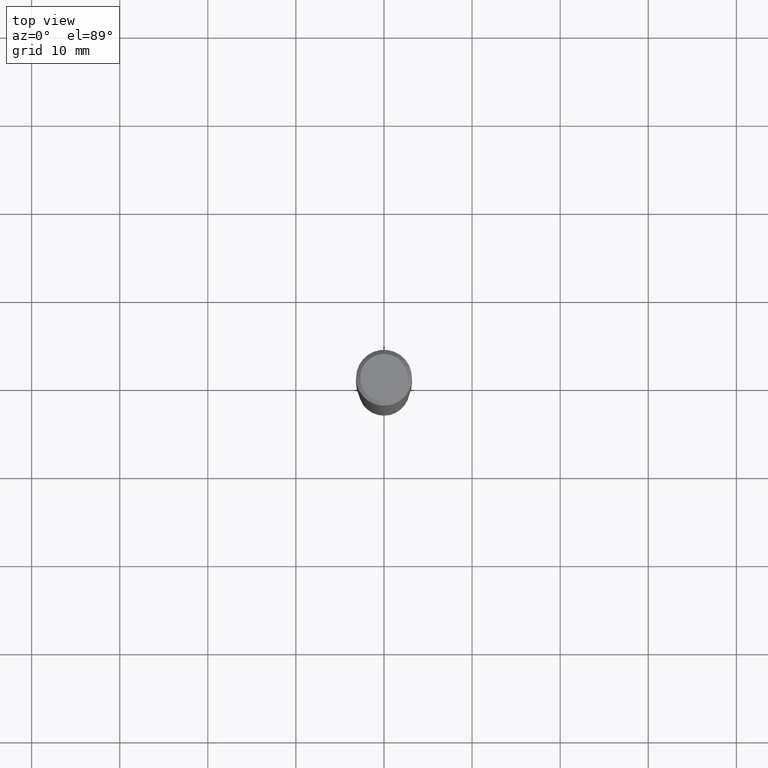
[diagram: clean part render]
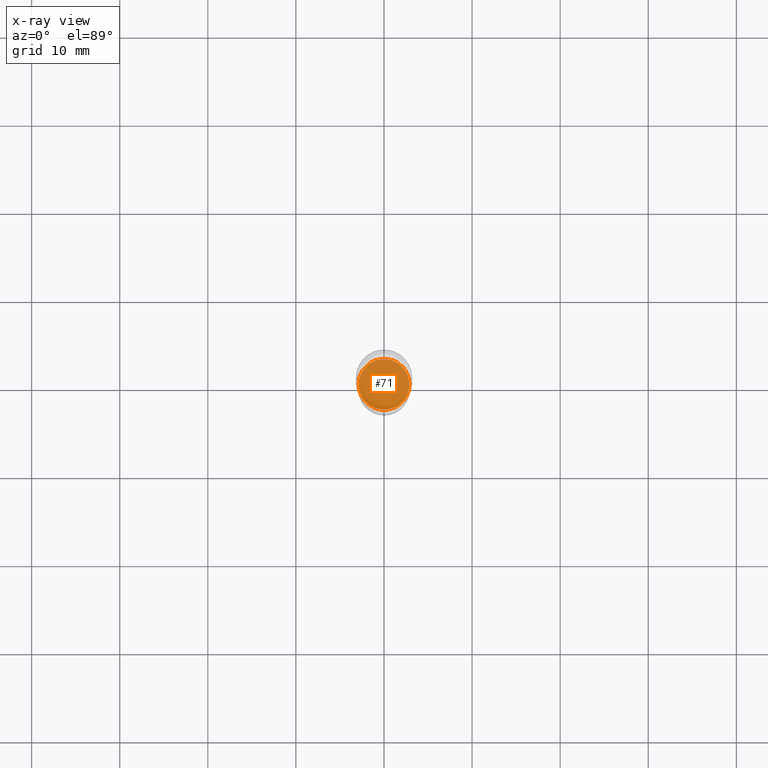
[diagram: x-ray — body ghosted, one internal face saturated and labeled with its STEP entity id]
A machine part, top view, then the same camera in x-ray: the body is ghosted and one INTERNAL B-rep face — a face not visible from any outside direction — is saturated and labeled: STEP entity #71.
In plain terms, the highlighted planar face has unit normal (-0, 0, 1).
Its self-contained STEP definition (entity closure, byte-faithful):
#34 = DIRECTION ( 'NONE',  ( 1.000000000000000000, -6.982962677686268288E-15, 0.000000000000000000 ) ) ;
#55 = CIRCLE ( 'NONE', #437, 0.1135000000000000037 ) ;
#71 = ADVANCED_FACE ( 'NONE', ( #413 ), #294, .F. ) ;
#83 = CARTESIAN_POINT ( 'NONE',  ( 4.225770097087915869E-29, -6.033279753520955359E-15, -1.727999999999999980 ) ) ;
#108 = VERTEX_POINT ( 'NONE', #183 ) ;
#158 = CARTESIAN_POINT ( 'NONE',  ( -0.1135000000000000037, -5.224164521259130914E-15, -1.727999999999999980 ) ) ;
#181 = EDGE_CURVE ( 'NONE', #404, #108, #297, .T. ) ;
#183 = CARTESIAN_POINT ( 'NONE',  ( 0.1135000000000000037, -6.825846017438347167E-15, -1.727999999999999980 ) ) ;
#192 = DIRECTION ( 'NONE',  ( -2.445468806185136597E-29, 3.491481338843145583E-15, 1.000000000000000000 ) ) ;
#225 = ORIENTED_EDGE ( 'NONE', *, *, #409, .F. ) ;
#262 = DIRECTION ( 'NONE',  ( -2.445468806185136597E-29, 3.491481338843145583E-15, 1.000000000000000000 ) ) ;
#294 = PLANE ( 'NONE',  #369 ) ;
#297 = CIRCLE ( 'NONE', #311, 0.1135000000000000037 ) ;
#300 = DIRECTION ( 'NONE',  ( -2.438088387897960049E-29, 3.491481338843145188E-15, 1.000000000000000000 ) ) ;
#311 = AXIS2_PLACEMENT_3D ( 'NONE', #379, #192, #340 ) ;
#332 = CARTESIAN_POINT ( 'NONE',  ( 4.225770097087915869E-29, -6.033279753520955359E-15, -1.727999999999999980 ) ) ;
#340 = DIRECTION ( 'NONE',  ( 1.000000000000000000, -6.982962677686268288E-15, 0.000000000000000000 ) ) ;
#344 = DIRECTION ( 'NONE',  ( 1.000000000000000000, -6.982962677686265922E-15, 4.876176775795935793E-29 ) ) ;
#369 = AXIS2_PLACEMENT_3D ( 'NONE', #332, #300, #344 ) ;
#379 = CARTESIAN_POINT ( 'NONE',  ( 4.225770097087915869E-29, -6.033279753520955359E-15, -1.727999999999999980 ) ) ;
#404 = VERTEX_POINT ( 'NONE', #158 ) ;
#409 = EDGE_CURVE ( 'NONE', #108, #404, #55, .T. ) ;
#413 = FACE_OUTER_BOUND ( 'NONE', #438, .T. ) ;
#437 = AXIS2_PLACEMENT_3D ( 'NONE', #83, #262, #34 ) ;
#438 = EDGE_LOOP ( 'NONE', ( #225, #473 ) ) ;
#473 = ORIENTED_EDGE ( 'NONE', *, *, #181, .F. ) ;